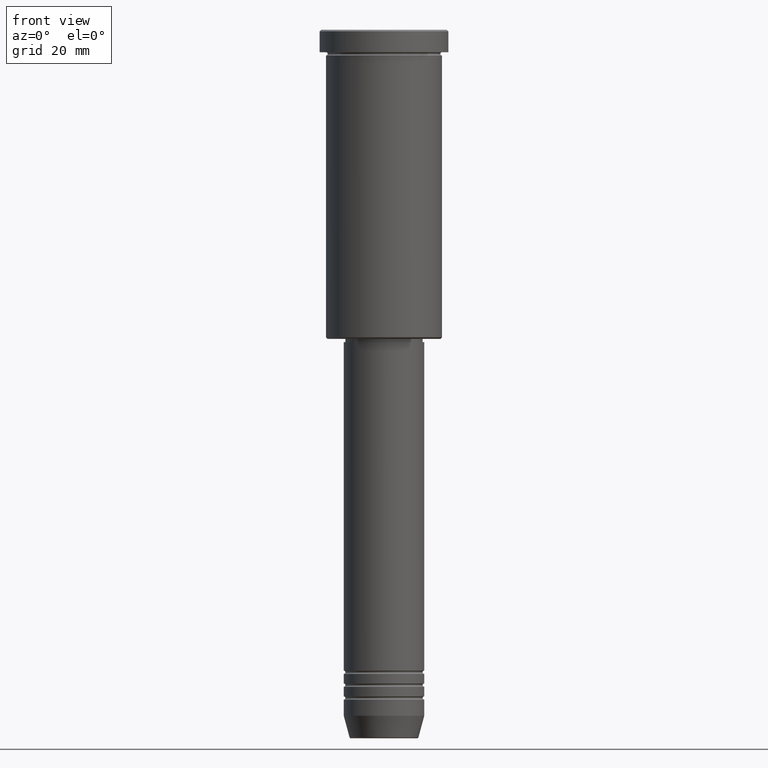
[diagram: clean part render]
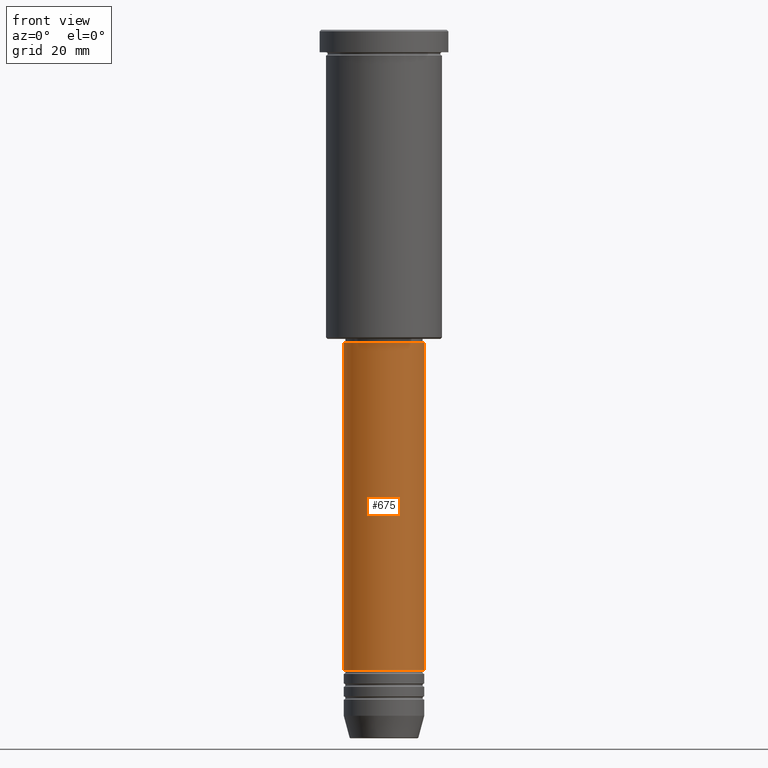
[diagram: same view with one face highlighted and labeled with its STEP entity id]
A machine part, front view. The second image highlights one B-rep face of the part: STEP entity #675.
In plain terms, the highlighted cylindrical surface (partial cylindrical patch) has radius 12.5 mm, axis along (-0, -0, 1).
Its self-contained STEP definition (entity closure, byte-faithful):
#51 = DIRECTION ( 'NONE',  ( 1.000000000000000000, 0.000000000000000000, 0.000000000000000000 ) ) ;
#52 = CARTESIAN_POINT ( 'NONE',  ( -12.50000000000000000, 1.530808498934191521E-15, -198.9999999999999716 ) ) ;
#66 = ORIENTED_EDGE ( 'NONE', *, *, #525, .F. ) ;
#96 = VERTEX_POINT ( 'NONE', #340 ) ;
#128 = DIRECTION ( 'NONE',  ( -0.000000000000000000, -0.000000000000000000, 1.000000000000000000 ) ) ;
#134 = CYLINDRICAL_SURFACE ( 'NONE', #764, 12.50000000000000000 ) ;
#208 = AXIS2_PLACEMENT_3D ( 'NONE', #489, #1065, #231 ) ;
#217 = ORIENTED_EDGE ( 'NONE', *, *, #606, .T. ) ;
#231 = DIRECTION ( 'NONE',  ( 1.000000000000000000, 0.000000000000000000, 0.000000000000000000 ) ) ;
#256 = EDGE_CURVE ( 'NONE', #1080, #96, #565, .T. ) ;
#264 = VERTEX_POINT ( 'NONE', #929 ) ;
#273 = DIRECTION ( 'NONE',  ( 1.000000000000000000, 0.000000000000000000, 0.000000000000000000 ) ) ;
#340 = CARTESIAN_POINT ( 'NONE',  ( -12.50000000000000000, 1.530808498934191521E-15, -97.00000000000002842 ) ) ;
#355 = EDGE_LOOP ( 'NONE', ( #737, #1016, #217, #66 ) ) ;
#381 = CARTESIAN_POINT ( 'NONE',  ( -12.50000000000000000, 1.530808498934191521E-15, 0.000000000000000000 ) ) ;
#489 = CARTESIAN_POINT ( 'NONE',  ( 0.000000000000000000, 0.000000000000000000, -97.00000000000002842 ) ) ;
#503 = CARTESIAN_POINT ( 'NONE',  ( 0.000000000000000000, 0.000000000000000000, 0.000000000000000000 ) ) ;
#525 = EDGE_CURVE ( 'NONE', #96, #1111, #1002, .T. ) ;
#565 = LINE ( 'NONE', #381, #933 ) ;
#587 = CARTESIAN_POINT ( 'NONE',  ( 12.50000000000000000, 0.000000000000000000, -97.00000000000002842 ) ) ;
#606 = EDGE_CURVE ( 'NONE', #264, #1111, #920, .T. ) ;
#615 = EDGE_CURVE ( 'NONE', #1080, #264, #709, .T. ) ;
#675 = ADVANCED_FACE ( 'NONE', ( #947 ), #134, .T. ) ;
#709 = CIRCLE ( 'NONE', #982, 12.50000000000000000 ) ;
#724 = CARTESIAN_POINT ( 'NONE',  ( 0.000000000000000000, 0.000000000000000000, -198.9999999999999716 ) ) ;
#737 = ORIENTED_EDGE ( 'NONE', *, *, #256, .F. ) ;
#764 = AXIS2_PLACEMENT_3D ( 'NONE', #503, #867, #51 ) ;
#837 = VECTOR ( 'NONE', #1100, 1000.000000000000000 ) ;
#867 = DIRECTION ( 'NONE',  ( -0.000000000000000000, -0.000000000000000000, 1.000000000000000000 ) ) ;
#920 = LINE ( 'NONE', #1180, #837 ) ;
#929 = CARTESIAN_POINT ( 'NONE',  ( 12.50000000000000000, 0.000000000000000000, -198.9999999999999716 ) ) ;
#933 = VECTOR ( 'NONE', #128, 1000.000000000000000 ) ;
#947 = FACE_OUTER_BOUND ( 'NONE', #355, .T. ) ;
#982 = AXIS2_PLACEMENT_3D ( 'NONE', #724, #1092, #273 ) ;
#1002 = CIRCLE ( 'NONE', #208, 12.50000000000000000 ) ;
#1016 = ORIENTED_EDGE ( 'NONE', *, *, #615, .T. ) ;
#1065 = DIRECTION ( 'NONE',  ( -0.000000000000000000, -0.000000000000000000, 1.000000000000000000 ) ) ;
#1080 = VERTEX_POINT ( 'NONE', #52 ) ;
#1092 = DIRECTION ( 'NONE',  ( -0.000000000000000000, -0.000000000000000000, 1.000000000000000000 ) ) ;
#1100 = DIRECTION ( 'NONE',  ( -0.000000000000000000, -0.000000000000000000, 1.000000000000000000 ) ) ;
#1111 = VERTEX_POINT ( 'NONE', #587 ) ;
#1180 = CARTESIAN_POINT ( 'NONE',  ( 12.50000000000000000, 0.000000000000000000, 0.000000000000000000 ) ) ;